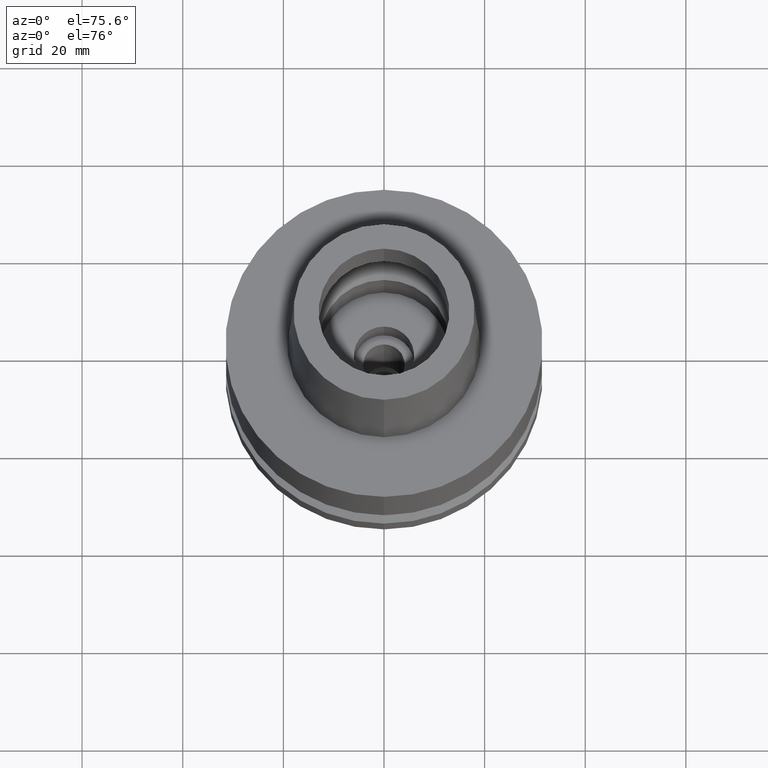
[diagram: clean part render]
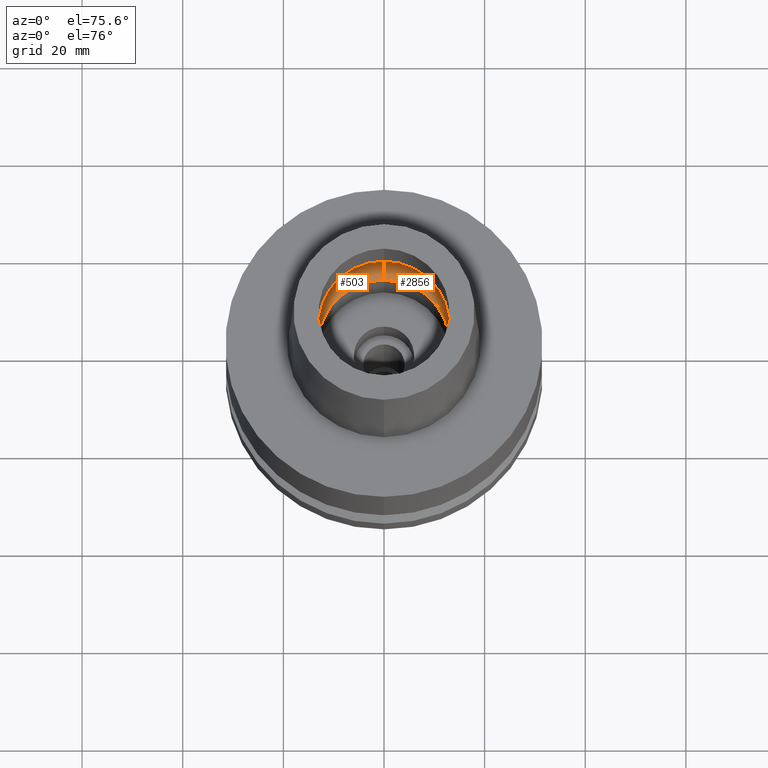
[diagram: same view with one multi-face feature highlighted, each face labeled with its STEP entity id]
A machine part, auxiliary view. The highlighted faces form ONE feature: a constant-radius fillet chain: 2 tangent blend faces with common blend radius 6 mm. The faces share edges in the B-rep.
Their STEP definitions:
[1] entity #503 (Torus):
#39 = DIRECTION ( 'NONE',  ( 0.0000000000000000000, -1.000000000000000000, 0.0000000000000000000 ) ) ;
#124 = ORIENTED_EDGE ( 'NONE', *, *, #1608, .F. ) ;
#171 = CARTESIAN_POINT ( 'NONE',  ( 0.0000000000000000000, -10.00000000000000000, 5.245999999999999552 ) ) ;
#297 = ORIENTED_EDGE ( 'NONE', *, *, #2768, .T. ) ;
#310 = EDGE_CURVE ( 'NONE', #1815, #632, #1723, .T. ) ;
#374 = EDGE_CURVE ( 'NONE', #1101, #672, #1221, .T. ) ;
#396 = CARTESIAN_POINT ( 'NONE',  ( 0.0000000000000000000, 16.00000000000000000, 5.245999999999999552 ) ) ;
#503 = ADVANCED_FACE ( 'NONE', ( #1184 ), #1275, .F. ) ;
#544 = DIRECTION ( 'NONE',  ( 0.0000000000000000000, 0.5000000000000169864, -0.8660254037844289376 ) ) ;
#632 = VERTEX_POINT ( 'NONE', #2139 ) ;
#672 = VERTEX_POINT ( 'NONE', #396 ) ;
#781 = DIRECTION ( 'NONE',  ( 1.000000000000000000, 0.0000000000000000000, 0.0000000000000000000 ) ) ;
#834 = AXIS2_PLACEMENT_3D ( 'NONE', #171, #2573, #2347 ) ;
#1051 = CARTESIAN_POINT ( 'NONE',  ( 0.0000000000000000000, 13.00000000000000000, 0.04984757729348000127 ) ) ;
#1101 = VERTEX_POINT ( 'NONE', #1664 ) ;
#1184 = FACE_OUTER_BOUND ( 'NONE', #1256, .T. ) ;
#1221 = CIRCLE ( 'NONE', #1582, 16.00000000000000000 ) ;
#1256 = EDGE_LOOP ( 'NONE', ( #1965, #124, #1923, #297 ) ) ;
#1275 = TOROIDAL_SURFACE ( 'NONE', #1983, 10.00000000000000000, 6.000000000000000000 ) ;
#1352 = AXIS2_PLACEMENT_3D ( 'NONE', #2632, #1537, #2645 ) ;
#1521 = AXIS2_PLACEMENT_3D ( 'NONE', #1856, #781, #544 ) ;
#1537 = DIRECTION ( 'NONE',  ( 0.0000000000000000000, 0.0000000000000000000, 1.000000000000000000 ) ) ;
#1582 = AXIS2_PLACEMENT_3D ( 'NONE', #2473, #1621, #39 ) ;
#1608 = EDGE_CURVE ( 'NONE', #632, #1101, #2866, .T. ) ;
#1621 = DIRECTION ( 'NONE',  ( 0.0000000000000000000, 0.0000000000000000000, -1.000000000000000000 ) ) ;
#1664 = CARTESIAN_POINT ( 'NONE',  ( 0.0000000000000000000, -16.00000000000000000, 5.245999999999999552 ) ) ;
#1723 = CIRCLE ( 'NONE', #1352, 13.00000000000000000 ) ;
#1815 = VERTEX_POINT ( 'NONE', #1051 ) ;
#1853 = DIRECTION ( 'NONE',  ( 0.0000000000000000000, 0.0000000000000000000, 1.000000000000000000 ) ) ;
#1856 = CARTESIAN_POINT ( 'NONE',  ( 0.0000000000000000000, 10.00000000000000000, 5.245999999999999552 ) ) ;
#1923 = ORIENTED_EDGE ( 'NONE', *, *, #310, .F. ) ;
#1965 = ORIENTED_EDGE ( 'NONE', *, *, #374, .F. ) ;
#1983 = AXIS2_PLACEMENT_3D ( 'NONE', #2243, #1853, #2690 ) ;
#2139 = CARTESIAN_POINT ( 'NONE',  ( 0.0000000000000000000, -13.00000000000000000, 0.04984757729340000276 ) ) ;
#2243 = CARTESIAN_POINT ( 'NONE',  ( 0.0000000000000000000, 0.0000000000000000000, 5.245999999999999552 ) ) ;
#2347 = DIRECTION ( 'NONE',  ( 0.0000000000000000000, -0.5000000000000169864, -0.8660254037844289376 ) ) ;
#2473 = CARTESIAN_POINT ( 'NONE',  ( 0.0000000000000000000, 0.0000000000000000000, 5.245999999999999552 ) ) ;
#2535 = CIRCLE ( 'NONE', #1521, 6.000000000000000000 ) ;
#2573 = DIRECTION ( 'NONE',  ( -1.000000000000000000, 0.0000000000000000000, 0.0000000000000000000 ) ) ;
#2632 = CARTESIAN_POINT ( 'NONE',  ( 0.0000000000000000000, 0.0000000000000000000, 0.04984757729340000276 ) ) ;
#2645 = DIRECTION ( 'NONE',  ( 0.0000000000000000000, 1.000000000000000000, 0.0000000000000000000 ) ) ;
#2690 = DIRECTION ( 'NONE',  ( 0.0000000000000000000, 1.000000000000000000, 0.0000000000000000000 ) ) ;
#2768 = EDGE_CURVE ( 'NONE', #1815, #672, #2535, .T. ) ;
#2866 = CIRCLE ( 'NONE', #834, 6.000000000000000000 ) ;
[2] entity #2856 (Torus):
#59 = CARTESIAN_POINT ( 'NONE',  ( 0.0000000000000000000, 0.0000000000000000000, 0.04984757729340000276 ) ) ;
#97 = AXIS2_PLACEMENT_3D ( 'NONE', #434, #1361, #1142 ) ;
#171 = CARTESIAN_POINT ( 'NONE',  ( 0.0000000000000000000, -10.00000000000000000, 5.245999999999999552 ) ) ;
#311 = CIRCLE ( 'NONE', #1937, 13.00000000000000000 ) ;
#396 = CARTESIAN_POINT ( 'NONE',  ( 0.0000000000000000000, 16.00000000000000000, 5.245999999999999552 ) ) ;
#434 = CARTESIAN_POINT ( 'NONE',  ( 0.0000000000000000000, 0.0000000000000000000, 5.245999999999999552 ) ) ;
#514 = ORIENTED_EDGE ( 'NONE', *, *, #2768, .F. ) ;
#544 = DIRECTION ( 'NONE',  ( 0.0000000000000000000, 0.5000000000000169864, -0.8660254037844289376 ) ) ;
#632 = VERTEX_POINT ( 'NONE', #2139 ) ;
#672 = VERTEX_POINT ( 'NONE', #396 ) ;
#734 = EDGE_CURVE ( 'NONE', #672, #1101, #2209, .T. ) ;
#781 = DIRECTION ( 'NONE',  ( 1.000000000000000000, 0.0000000000000000000, 0.0000000000000000000 ) ) ;
#834 = AXIS2_PLACEMENT_3D ( 'NONE', #171, #2573, #2347 ) ;
#1046 = ORIENTED_EDGE ( 'NONE', *, *, #1608, .T. ) ;
#1051 = CARTESIAN_POINT ( 'NONE',  ( 0.0000000000000000000, 13.00000000000000000, 0.04984757729348000127 ) ) ;
#1101 = VERTEX_POINT ( 'NONE', #1664 ) ;
#1142 = DIRECTION ( 'NONE',  ( 0.0000000000000000000, 1.000000000000000000, 0.0000000000000000000 ) ) ;
#1291 = EDGE_CURVE ( 'NONE', #632, #1815, #311, .T. ) ;
#1361 = DIRECTION ( 'NONE',  ( 0.0000000000000000000, 0.0000000000000000000, -1.000000000000000000 ) ) ;
#1398 = ORIENTED_EDGE ( 'NONE', *, *, #1291, .F. ) ;
#1404 = DIRECTION ( 'NONE',  ( 0.0000000000000000000, -1.000000000000000000, 0.0000000000000000000 ) ) ;
#1427 = DIRECTION ( 'NONE',  ( 0.0000000000000000000, 0.0000000000000000000, 1.000000000000000000 ) ) ;
#1521 = AXIS2_PLACEMENT_3D ( 'NONE', #1856, #781, #544 ) ;
#1608 = EDGE_CURVE ( 'NONE', #632, #1101, #2866, .T. ) ;
#1664 = CARTESIAN_POINT ( 'NONE',  ( 0.0000000000000000000, -16.00000000000000000, 5.245999999999999552 ) ) ;
#1815 = VERTEX_POINT ( 'NONE', #1051 ) ;
#1856 = CARTESIAN_POINT ( 'NONE',  ( 0.0000000000000000000, 10.00000000000000000, 5.245999999999999552 ) ) ;
#1937 = AXIS2_PLACEMENT_3D ( 'NONE', #59, #2483, #1404 ) ;
#2139 = CARTESIAN_POINT ( 'NONE',  ( 0.0000000000000000000, -13.00000000000000000, 0.04984757729340000276 ) ) ;
#2209 = CIRCLE ( 'NONE', #97, 16.00000000000000000 ) ;
#2253 = EDGE_LOOP ( 'NONE', ( #1398, #1046, #2769, #514 ) ) ;
#2293 = FACE_OUTER_BOUND ( 'NONE', #2253, .T. ) ;
#2347 = DIRECTION ( 'NONE',  ( 0.0000000000000000000, -0.5000000000000169864, -0.8660254037844289376 ) ) ;
#2477 = AXIS2_PLACEMENT_3D ( 'NONE', #2755, #1427, #2566 ) ;
#2483 = DIRECTION ( 'NONE',  ( 0.0000000000000000000, 0.0000000000000000000, 1.000000000000000000 ) ) ;
#2535 = CIRCLE ( 'NONE', #1521, 6.000000000000000000 ) ;
#2566 = DIRECTION ( 'NONE',  ( 0.0000000000000000000, 1.000000000000000000, 0.0000000000000000000 ) ) ;
#2573 = DIRECTION ( 'NONE',  ( -1.000000000000000000, 0.0000000000000000000, 0.0000000000000000000 ) ) ;
#2718 = TOROIDAL_SURFACE ( 'NONE', #2477, 10.00000000000000000, 6.000000000000000000 ) ;
#2755 = CARTESIAN_POINT ( 'NONE',  ( 0.0000000000000000000, 0.0000000000000000000, 5.245999999999999552 ) ) ;
#2768 = EDGE_CURVE ( 'NONE', #1815, #672, #2535, .T. ) ;
#2769 = ORIENTED_EDGE ( 'NONE', *, *, #734, .F. ) ;
#2856 = ADVANCED_FACE ( 'NONE', ( #2293 ), #2718, .F. ) ;
#2866 = CIRCLE ( 'NONE', #834, 6.000000000000000000 ) ;